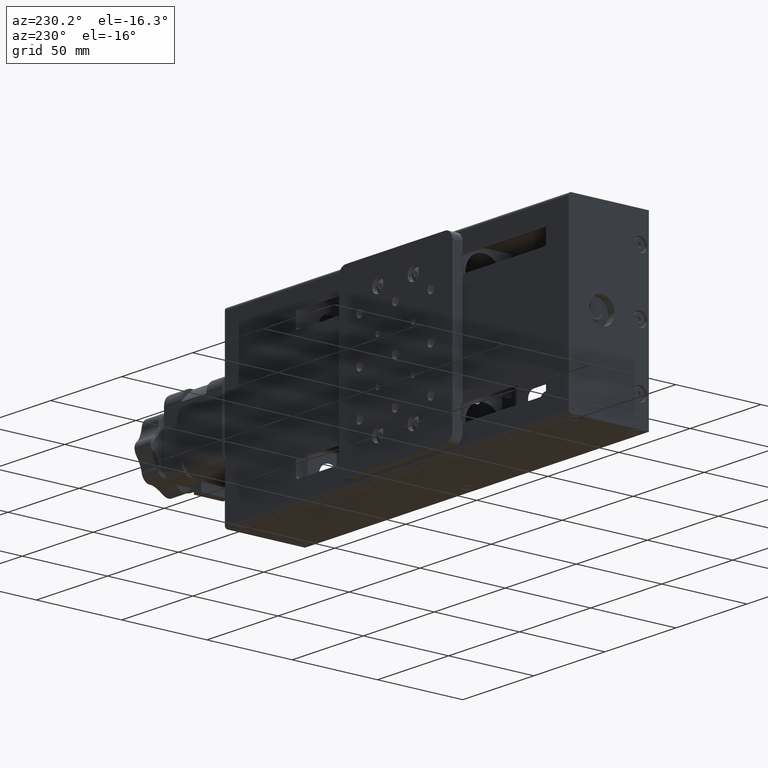
[diagram: clean part render]
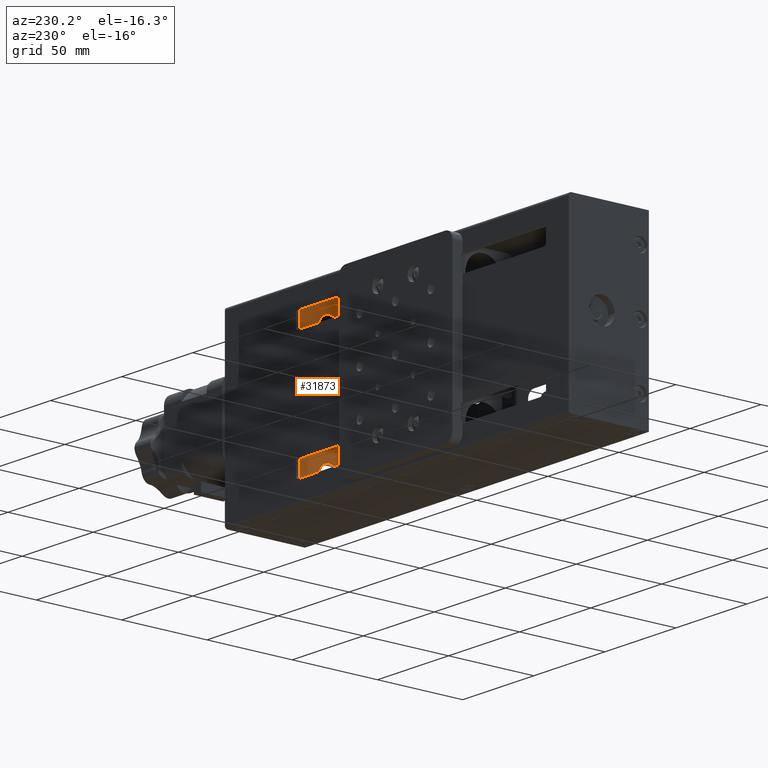
[diagram: same view with one face highlighted and labeled with its STEP entity id]
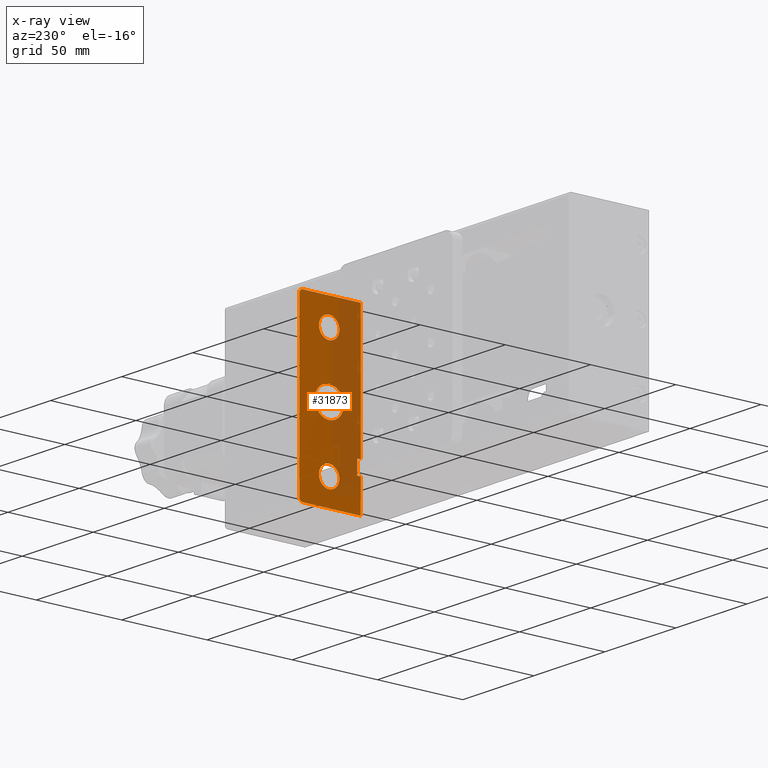
[diagram: x-ray of the same camera — body ghosted, the highlighted face saturated]
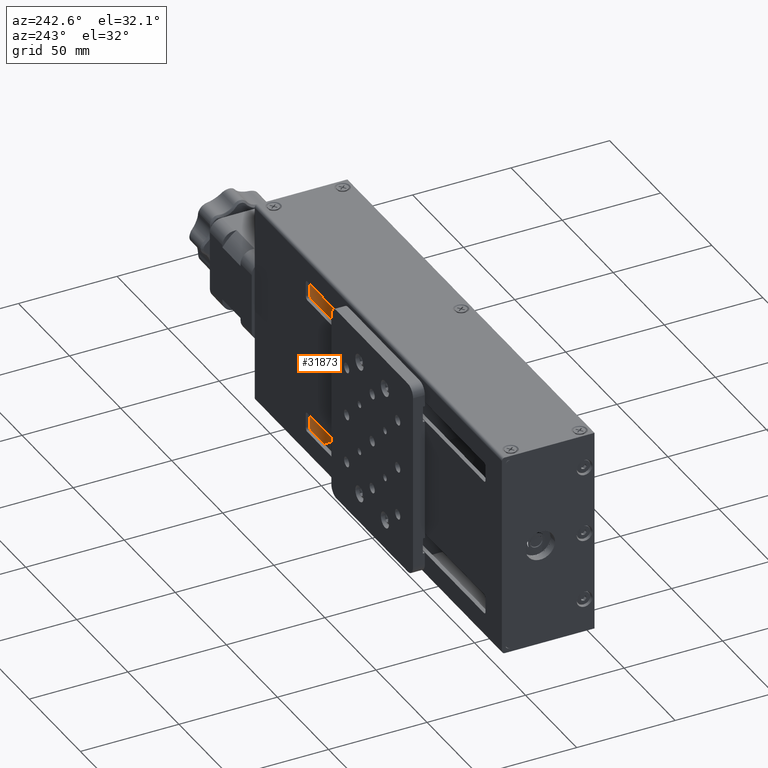
[diagram: same view with one face highlighted and labeled with its STEP entity id]
A machine part, auxiliary view. The second image highlights one B-rep face of the part: STEP entity #31873.
The next image is the same camera in x-ray: the body ghosted, the highlighted face saturated — about 42% of this face is hidden behind the body in this view.
A second angle (auxiliary view) of the same face is appended — the face is thin or edge-on in the first view.
In plain terms, the highlighted planar face has unit normal (-1, 0, 0).
Its self-contained STEP definition (entity closure, byte-faithful):
#127 = DIRECTION ( 'NONE',  ( -6.938893903907226000E-015, 0.0000000000000000000, -1.000000000000000000 ) ) ;
#462 = CARTESIAN_POINT ( 'NONE',  ( 70.99999999999980100, 9.000000000000035500, -31.50000000000049400 ) ) ;
#567 = EDGE_CURVE ( 'NONE', #14503, #13513, #13336, .T. ) ;
#627 = DIRECTION ( 'NONE',  ( 6.938893903907222100E-015, 0.0000000000000000000, 1.000000000000000000 ) ) ;
#648 = LINE ( 'NONE', #14953, #29036 ) ;
#705 = ORIENTED_EDGE ( 'NONE', *, *, #23325, .F. ) ;
#768 = VERTEX_POINT ( 'NONE', #18537 ) ;
#839 = FACE_BOUND ( 'NONE', #20005, .T. ) ;
#1193 = VERTEX_POINT ( 'NONE', #26189 ) ;
#1987 = CARTESIAN_POINT ( 'NONE',  ( 70.99999999999967300, 9.000000000000035500, -50.00000000000048300 ) ) ;
#2261 = DIRECTION ( 'NONE',  ( -1.000000000000000000, 0.0000000000000000000, 7.137148015447434000E-015 ) ) ;
#2646 = DIRECTION ( 'NONE',  ( 6.938893903907222100E-015, 0.0000000000000000000, 1.000000000000000000 ) ) ;
#3174 = LINE ( 'NONE', #25415, #30690 ) ;
#3542 = CIRCLE ( 'NONE', #28620, 5.999999999999998200 ) ;
#3599 = CARTESIAN_POINT ( 'NONE',  ( 70.99999999999985800, 11.00000000000003600, -23.50000000000049400 ) ) ;
#3614 = DIRECTION ( 'NONE',  ( 7.137148015447434000E-015, 0.0000000000000000000, 1.000000000000000000 ) ) ;
#4770 = DIRECTION ( 'NONE',  ( 7.137148015447434000E-015, 0.0000000000000000000, 1.000000000000000000 ) ) ;
#5062 = EDGE_CURVE ( 'NONE', #22417, #23885, #7356, .T. ) ;
#5696 = AXIS2_PLACEMENT_3D ( 'NONE', #35630, #19063, #2646 ) ;
#6047 = VECTOR ( 'NONE', #30123, 1000.000000000000000 ) ;
#6358 = CARTESIAN_POINT ( 'NONE',  ( 70.99999999999967300, 9.000000000000035500, -50.00000000000048300 ) ) ;
#6405 = FACE_BOUND ( 'NONE', #21034, .T. ) ;
#6939 = CIRCLE ( 'NONE', #5696, 2.000000000000001800 ) ;
#6986 = DIRECTION ( 'NONE',  ( -1.000000000000000000, 0.0000000000000000000, 7.137148015447434000E-015 ) ) ;
#7220 = CARTESIAN_POINT ( 'NONE',  ( 71.00000000000038400, 45.00000000000003600, 49.99999999999953100 ) ) ;
#7356 = CIRCLE ( 'NONE', #8789, 2.000000000000001800 ) ;
#7741 = EDGE_CURVE ( 'NONE', #28011, #13133, #29855, .T. ) ;
#8462 = VERTEX_POINT ( 'NONE', #28745 ) ;
#8753 = ORIENTED_EDGE ( 'NONE', *, *, #25452, .F. ) ;
#8789 = AXIS2_PLACEMENT_3D ( 'NONE', #33576, #17059, #627 ) ;
#9207 = CARTESIAN_POINT ( 'NONE',  ( 70.99999999999967300, 9.000000000000035500, -50.00000000000048300 ) ) ;
#9838 = EDGE_CURVE ( 'NONE', #768, #27894, #3542, .T. ) ;
#10609 = VECTOR ( 'NONE', #11972, 1000.000000000000000 ) ;
#10779 = CARTESIAN_POINT ( 'NONE',  ( 71.00000000000002800, 27.50000000000003600, -4.857376796017720300E-013 ) ) ;
#10786 = LINE ( 'NONE', #7220, #31894 ) ;
#10813 = EDGE_CURVE ( 'NONE', #32063, #11143, #26609, .T. ) ;
#11143 = VERTEX_POINT ( 'NONE', #21727 ) ;
#11390 = EDGE_CURVE ( 'NONE', #13513, #23465, #27131, .T. ) ;
#11972 = DIRECTION ( 'NONE',  ( 0.0000000000000000000, -1.000000000000000000, 0.0000000000000000000 ) ) ;
#12043 = VERTEX_POINT ( 'NONE', #27334 ) ;
#12158 = DIRECTION ( 'NONE',  ( 0.0000000000000000000, 1.000000000000000000, 0.0000000000000000000 ) ) ;
#12385 = CARTESIAN_POINT ( 'NONE',  ( 71.00000000000027000, 27.50000000000004300, 34.99999999999951700 ) ) ;
#12729 = ORIENTED_EDGE ( 'NONE', *, *, #5062, .T. ) ;
#12916 = CIRCLE ( 'NONE', #13027, 8.500000000000000000 ) ;
#12985 = EDGE_CURVE ( 'NONE', #13133, #28011, #33852, .T. ) ;
#13027 = AXIS2_PLACEMENT_3D ( 'NONE', #10779, #30025, #13516 ) ;
#13133 = VERTEX_POINT ( 'NONE', #32158 ) ;
#13336 = LINE ( 'NONE', #18152, #6047 ) ;
#13513 = VERTEX_POINT ( 'NONE', #9207 ) ;
#13516 = DIRECTION ( 'NONE',  ( 6.530723674265626400E-015, 0.0000000000000000000, 1.000000000000000000 ) ) ;
#13753 = EDGE_CURVE ( 'NONE', #27894, #768, #17757, .T. ) ;
#13815 = CARTESIAN_POINT ( 'NONE',  ( 70.99999999999977300, 27.50000000000003600, -35.00000000000049000 ) ) ;
#14332 = ORIENTED_EDGE ( 'NONE', *, *, #29400, .T. ) ;
#14503 = VERTEX_POINT ( 'NONE', #24522 ) ;
#14699 = ORIENTED_EDGE ( 'NONE', *, *, #12985, .F. ) ;
#14953 = CARTESIAN_POINT ( 'NONE',  ( 70.99999999999980100, 11.00000000000003600, -31.50000000000049400 ) ) ;
#15165 = DIRECTION ( 'NONE',  ( -6.938893903907226000E-015, 0.0000000000000000000, -1.000000000000000000 ) ) ;
#15300 = EDGE_CURVE ( 'NONE', #23885, #24611, #3174, .T. ) ;
#15977 = CARTESIAN_POINT ( 'NONE',  ( 70.99999999999980100, 11.00000000000003600, -31.50000000000049400 ) ) ;
#15981 = EDGE_CURVE ( 'NONE', #11143, #22417, #10786, .T. ) ;
#16136 = EDGE_CURVE ( 'NONE', #12043, #1193, #24086, .T. ) ;
#16278 = VERTEX_POINT ( 'NONE', #33071 ) ;
#16346 = AXIS2_PLACEMENT_3D ( 'NONE', #18687, #2261, #21455 ) ;
#16553 = DIRECTION ( 'NONE',  ( -1.000000000000000000, 0.0000000000000000000, 7.137148015447434000E-015 ) ) ;
#16601 = DIRECTION ( 'NONE',  ( 6.938893903907230700E-015, 0.0000000000000000000, 1.000000000000000000 ) ) ;
#17059 = DIRECTION ( 'NONE',  ( -1.000000000000000000, 0.0000000000000000000, 7.137148015447434000E-015 ) ) ;
#17384 = ORIENTED_EDGE ( 'NONE', *, *, #11390, .T. ) ;
#17577 = ORIENTED_EDGE ( 'NONE', *, *, #10813, .T. ) ;
#17757 = CIRCLE ( 'NONE', #16346, 5.999999999999998200 ) ;
#17901 = LINE ( 'NONE', #3599, #10609 ) ;
#17946 = AXIS2_PLACEMENT_3D ( 'NONE', #1987, #21171, #4770 ) ;
#17958 = CARTESIAN_POINT ( 'NONE',  ( 70.99999999999985800, 9.000000000000035500, -23.50000000000049400 ) ) ;
#18152 = CARTESIAN_POINT ( 'NONE',  ( 70.99999999999967300, 45.00000000000003600, -50.00000000000049000 ) ) ;
#18452 = EDGE_CURVE ( 'NONE', #23465, #12043, #648, .T. ) ;
#18537 = CARTESIAN_POINT ( 'NONE',  ( 70.99999999999981500, 27.50000000000003600, -29.00000000000049000 ) ) ;
#18636 = ORIENTED_EDGE ( 'NONE', *, *, #35658, .T. ) ;
#18687 = CARTESIAN_POINT ( 'NONE',  ( 70.99999999999977300, 27.50000000000003600, -35.00000000000049000 ) ) ;
#19063 = DIRECTION ( 'NONE',  ( -1.000000000000000000, 0.0000000000000000000, 7.137148015447434000E-015 ) ) ;
#19225 = VECTOR ( 'NONE', #31837, 1000.000000000000000 ) ;
#19750 = VECTOR ( 'NONE', #3614, 1000.000000000000000 ) ;
#19940 = DIRECTION ( 'NONE',  ( -7.137148015447434000E-015, -0.0000000000000000000, -1.000000000000000000 ) ) ;
#20005 = EDGE_LOOP ( 'NONE', ( #22721, #14699 ) ) ;
#20288 = CIRCLE ( 'NONE', #29282, 8.500000000000000000 ) ;
#20389 = ORIENTED_EDGE ( 'NONE', *, *, #567, .T. ) ;
#20989 = FACE_OUTER_BOUND ( 'NONE', #32479, .T. ) ;
#21034 = EDGE_LOOP ( 'NONE', ( #33533, #24760 ) ) ;
#21171 = DIRECTION ( 'NONE',  ( -1.000000000000000000, 0.0000000000000000000, 7.137148015447434000E-015 ) ) ;
#21455 = DIRECTION ( 'NONE',  ( 6.938893903907230700E-015, 0.0000000000000000000, 1.000000000000000000 ) ) ;
#21727 = CARTESIAN_POINT ( 'NONE',  ( 71.00000000000038400, 9.000000000000035500, 49.99999999999951700 ) ) ;
#22417 = VERTEX_POINT ( 'NONE', #22611 ) ;
#22611 = CARTESIAN_POINT ( 'NONE',  ( 71.00000000000038400, 43.00000000000002800, 49.99999999999953100 ) ) ;
#22721 = ORIENTED_EDGE ( 'NONE', *, *, #7741, .F. ) ;
#23325 = EDGE_CURVE ( 'NONE', #8462, #16278, #12916, .T. ) ;
#23435 = CARTESIAN_POINT ( 'NONE',  ( 71.00000000000002800, 27.50000000000003600, -4.857376796017720300E-013 ) ) ;
#23465 = VERTEX_POINT ( 'NONE', #462 ) ;
#23885 = VERTEX_POINT ( 'NONE', #27181 ) ;
#23910 = ORIENTED_EDGE ( 'NONE', *, *, #16136, .T. ) ;
#24086 = LINE ( 'NONE', #15977, #26692 ) ;
#24522 = CARTESIAN_POINT ( 'NONE',  ( 70.99999999999967300, 43.00000000000002800, -50.00000000000049000 ) ) ;
#24607 = AXIS2_PLACEMENT_3D ( 'NONE', #33080, #16553, #127 ) ;
#24611 = VERTEX_POINT ( 'NONE', #35366 ) ;
#24736 = ORIENTED_EDGE ( 'NONE', *, *, #18452, .T. ) ;
#24760 = ORIENTED_EDGE ( 'NONE', *, *, #13753, .F. ) ;
#24920 = CARTESIAN_POINT ( 'NONE',  ( 70.99999999999985800, 9.000000000000035500, -23.50000000000049400 ) ) ;
#25098 = EDGE_LOOP ( 'NONE', ( #705, #8753 ) ) ;
#25330 = CARTESIAN_POINT ( 'NONE',  ( 71.00000000000022700, 27.50000000000004300, 28.99999999999951700 ) ) ;
#25415 = CARTESIAN_POINT ( 'NONE',  ( 70.99999999999967300, 45.00000000000003600, -50.00000000000049000 ) ) ;
#25452 = EDGE_CURVE ( 'NONE', #16278, #8462, #20288, .T. ) ;
#26189 = CARTESIAN_POINT ( 'NONE',  ( 70.99999999999985800, 11.00000000000003600, -23.50000000000049400 ) ) ;
#26230 = DIRECTION ( 'NONE',  ( 6.530723674265626400E-015, 0.0000000000000000000, 1.000000000000000000 ) ) ;
#26453 = DIRECTION ( 'NONE',  ( 2.751328491981765300E-030, 1.000000000000000000, 3.854941057726238100E-016 ) ) ;
#26609 = LINE ( 'NONE', #17958, #19225 ) ;
#26692 = VECTOR ( 'NONE', #35265, 1000.000000000000000 ) ;
#27131 = LINE ( 'NONE', #6358, #19750 ) ;
#27181 = CARTESIAN_POINT ( 'NONE',  ( 71.00000000000036900, 45.00000000000003600, 47.99999999999953100 ) ) ;
#27334 = CARTESIAN_POINT ( 'NONE',  ( 70.99999999999980100, 11.00000000000003600, -31.50000000000049400 ) ) ;
#27558 = ORIENTED_EDGE ( 'NONE', *, *, #15300, .T. ) ;
#27894 = VERTEX_POINT ( 'NONE', #32937 ) ;
#28011 = VERTEX_POINT ( 'NONE', #25330 ) ;
#28620 = AXIS2_PLACEMENT_3D ( 'NONE', #13815, #33118, #16601 ) ;
#28745 = CARTESIAN_POINT ( 'NONE',  ( 71.00000000000007100, 27.50000000000003600, 8.499999999999515100 ) ) ;
#29007 = AXIS2_PLACEMENT_3D ( 'NONE', #12385, #31684, #15165 ) ;
#29036 = VECTOR ( 'NONE', #12158, 1000.000000000000000 ) ;
#29282 = AXIS2_PLACEMENT_3D ( 'NONE', #23435, #6986, #26230 ) ;
#29400 = EDGE_CURVE ( 'NONE', #1193, #32063, #17901, .T. ) ;
#29855 = CIRCLE ( 'NONE', #24607, 6.000000000000001800 ) ;
#30025 = DIRECTION ( 'NONE',  ( -1.000000000000000000, 0.0000000000000000000, 7.137148015447434000E-015 ) ) ;
#30123 = DIRECTION ( 'NONE',  ( 1.375664245990882600E-030, -1.000000000000000000, 1.927470528863119000E-016 ) ) ;
#30690 = VECTOR ( 'NONE', #19940, 1000.000000000000000 ) ;
#31684 = DIRECTION ( 'NONE',  ( -1.000000000000000000, 0.0000000000000000000, 7.137148015447434000E-015 ) ) ;
#31837 = DIRECTION ( 'NONE',  ( 7.137148015447434000E-015, 0.0000000000000000000, 1.000000000000000000 ) ) ;
#31873 = ADVANCED_FACE ( 'NONE', ( #34820, #839, #20989, #6405 ), #32070, .T. ) ;
#31894 = VECTOR ( 'NONE', #26453, 1000.000000000000000 ) ;
#32063 = VERTEX_POINT ( 'NONE', #24920 ) ;
#32070 = PLANE ( 'NONE',  #17946 ) ;
#32158 = CARTESIAN_POINT ( 'NONE',  ( 71.00000000000031300, 27.50000000000004300, 40.99999999999952400 ) ) ;
#32479 = EDGE_LOOP ( 'NONE', ( #33355, #12729, #27558, #18636, #20389, #17384, #24736, #23910, #14332, #17577 ) ) ;
#32937 = CARTESIAN_POINT ( 'NONE',  ( 70.99999999999973000, 27.50000000000003600, -41.00000000000049000 ) ) ;
#33071 = CARTESIAN_POINT ( 'NONE',  ( 70.99999999999997200, 27.50000000000003600, -8.500000000000486700 ) ) ;
#33080 = CARTESIAN_POINT ( 'NONE',  ( 71.00000000000027000, 27.50000000000004300, 34.99999999999951700 ) ) ;
#33118 = DIRECTION ( 'NONE',  ( -1.000000000000000000, 0.0000000000000000000, 7.137148015447434000E-015 ) ) ;
#33355 = ORIENTED_EDGE ( 'NONE', *, *, #15981, .T. ) ;
#33533 = ORIENTED_EDGE ( 'NONE', *, *, #9838, .F. ) ;
#33576 = CARTESIAN_POINT ( 'NONE',  ( 71.00000000000036900, 43.00000000000002800, 47.99999999999953100 ) ) ;
#33852 = CIRCLE ( 'NONE', #29007, 6.000000000000001800 ) ;
#34820 = FACE_BOUND ( 'NONE', #25098, .T. ) ;
#35265 = DIRECTION ( 'NONE',  ( 7.137148015447434000E-015, 0.0000000000000000000, 1.000000000000000000 ) ) ;
#35366 = CARTESIAN_POINT ( 'NONE',  ( 70.99999999999968700, 45.00000000000003600, -48.00000000000048300 ) ) ;
#35630 = CARTESIAN_POINT ( 'NONE',  ( 70.99999999999968700, 43.00000000000002800, -48.00000000000048300 ) ) ;
#35658 = EDGE_CURVE ( 'NONE', #24611, #14503, #6939, .T. ) ;